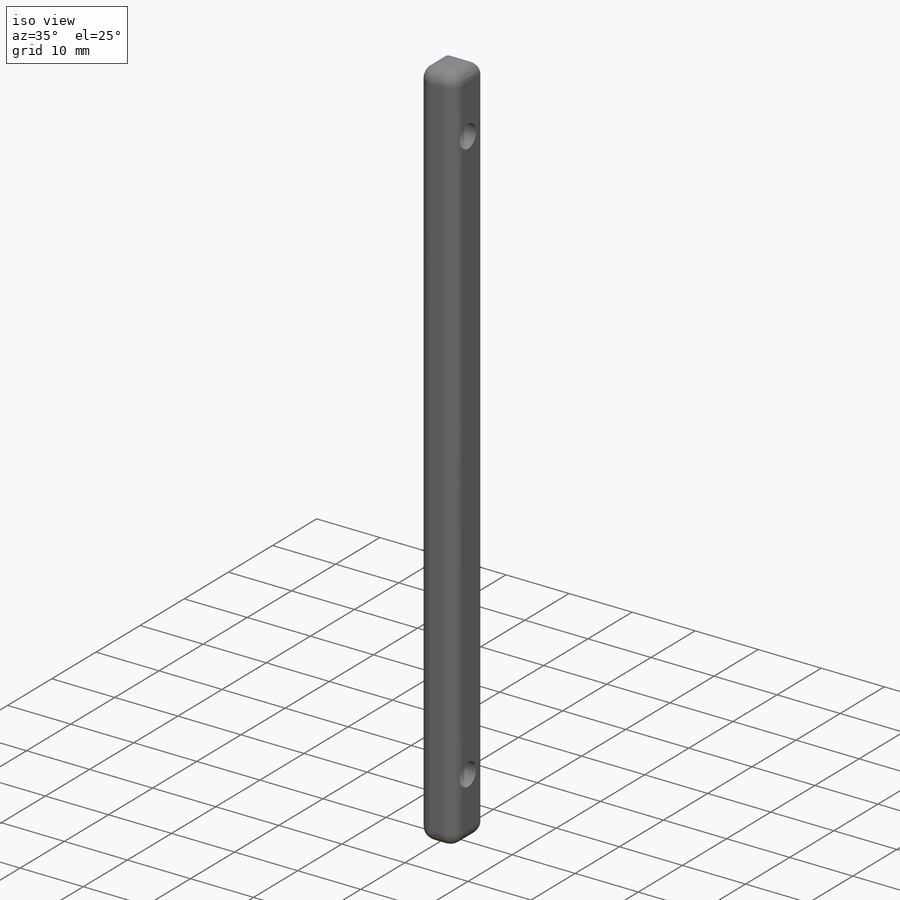
[diagram: iso view]
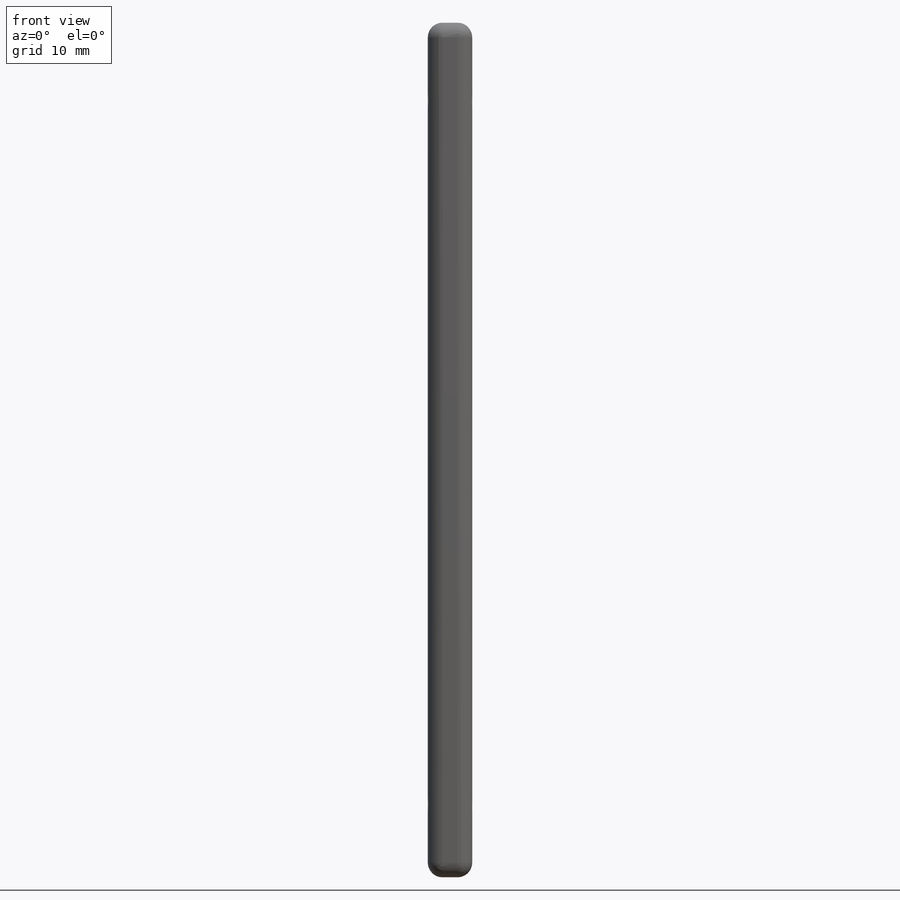
[diagram: front view]
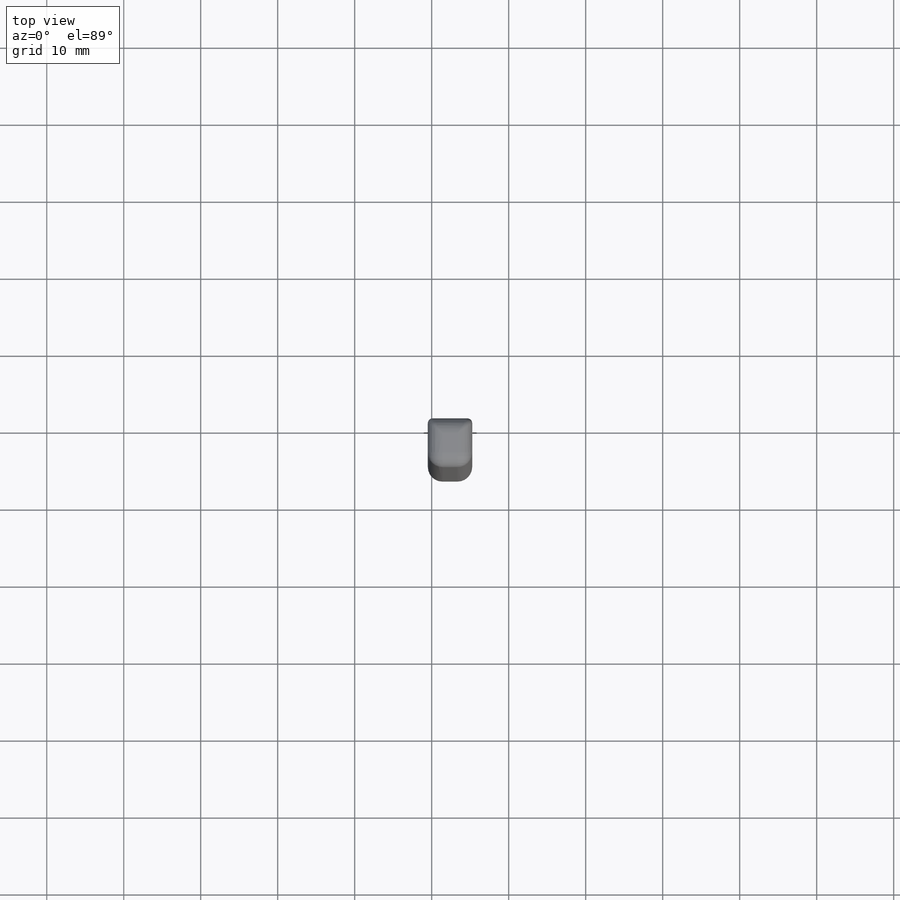
[diagram: top view]
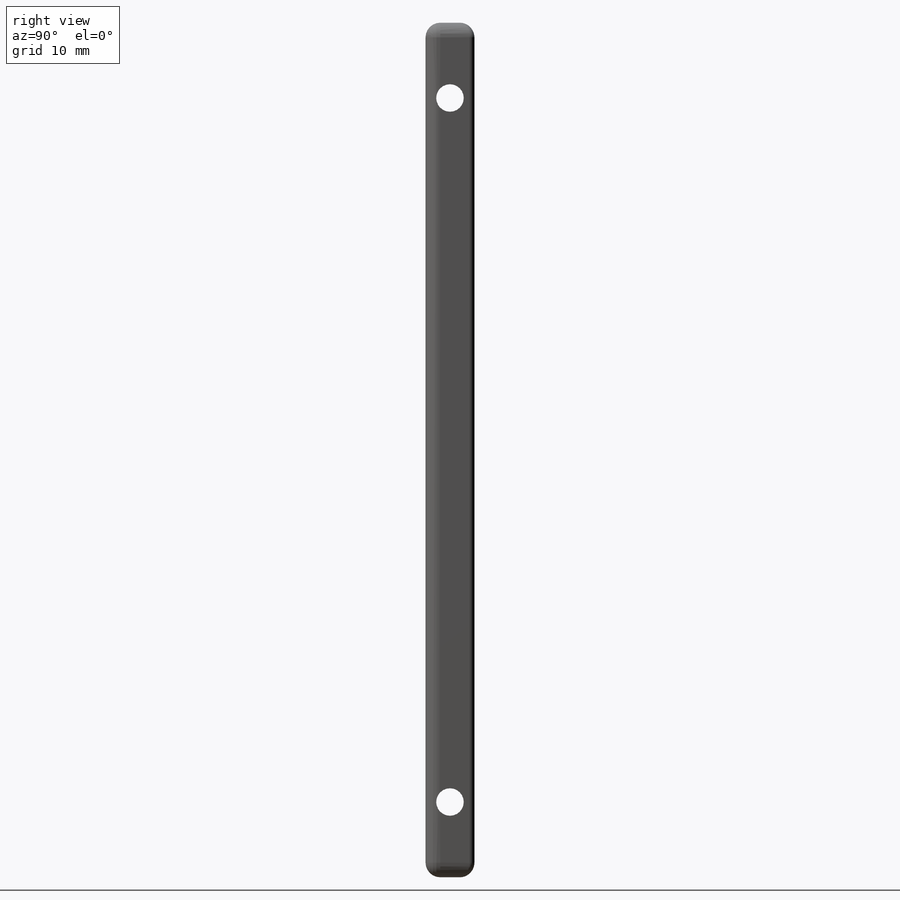
[diagram: right view]
SOLIDWORKS PART (.sldprt)
format: sldprt  version: not decoded by parser v0  size: 210,944 bytes
history: native  units: mm
features: sketch x3, fillet x2, material x1, extrude x1, hole x1, mirror x1 (+13 scaffold rows collapsed)
feature tree (22):
  scaffold x13  (default folders/planes/origin — collapsed)
  material  "ABS"
  sketch  "Sketch1"  dims[D1=0.381mm]
  extrude  "Boss-Extrude1"  [1 undecoded]
  hole  "#28 (0.1405) Diameter Hole1"  Diameter=3.5687mm Depth=5.7658mm
  sketch  "Sketch2"
  sketch  "Sketch3"  dims[Thru Hole Dia.=3.5687mm Thru Hole Depth=5.7658mm]
  mirror  "Mirror1"
  fillet  "Fillet2"  Radius=1.905mm
  fillet  "Fillet3"  Radius=0.635mm
decode coverage: 5 of 8 modeling features carry decoded parameters
note: 1 parameter value undecoded
note: suppression state not decoded; provenance and decode notes live in map.json
